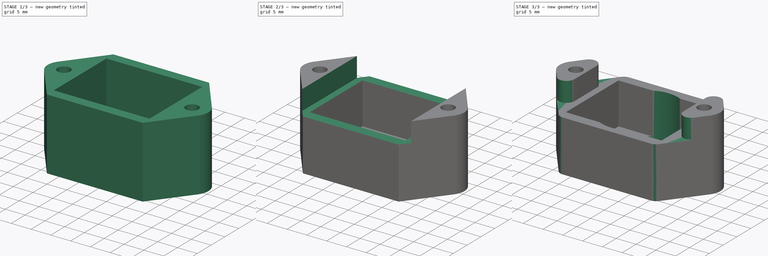
[diagram: build sequence overview — one tinted view per stage of 3, left to right]
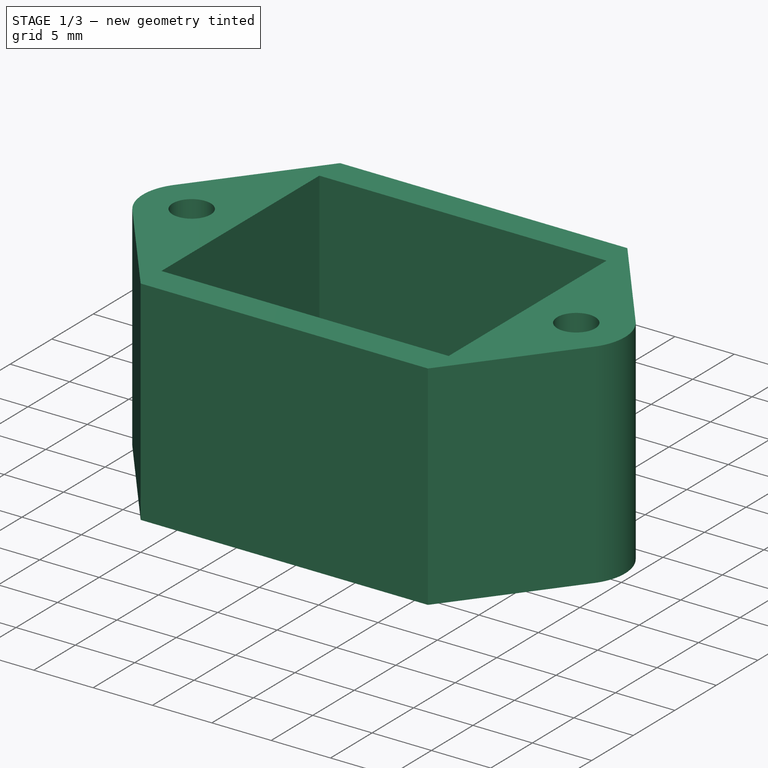
[diagram: stage 1 of 3 — iso view after this stage's code; geometry added in this stage tinted green]
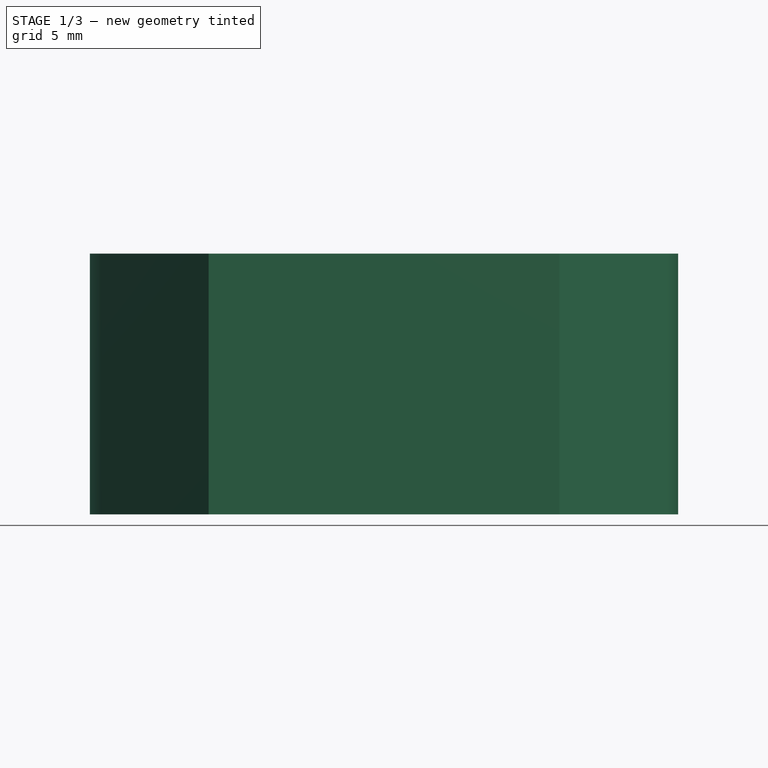
[diagram: stage 1 of 3 — front view after this stage's code; geometry added in this stage tinted green]
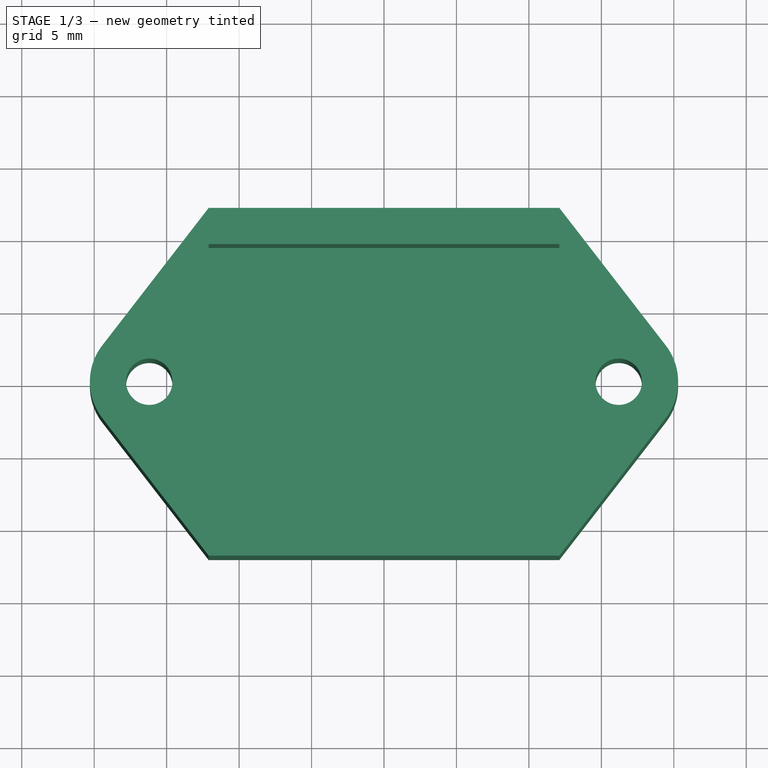
[diagram: stage 1 of 3 — top view after this stage's code; geometry added in this stage tinted green]
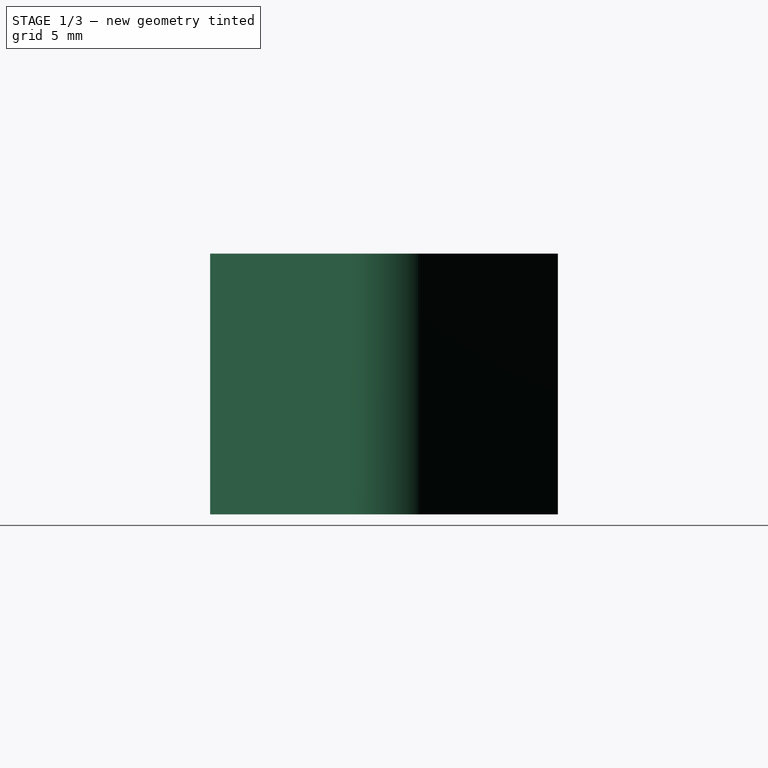
[diagram: stage 1 of 3 — right view after this stage's code; geometry added in this stage tinted green]
FCSTD DOCUMENT  (FreeCAD 0.20R29603 (Git))
Label: case-cam-shiled
License: All rights reserved
LicenseURL: http://en.wikipedia.org/wiki/All_rights_reserved
objects: Sketcher::SketchObject×4, PartDesign::Pad×2, PartDesign::Pocket×2, PartDesign::Fillet×1, PartDesign::Body×1
note: 15 computed .brp shape members not serialized (recipe doc carries the construction recipe); baked Part::Feature solids carry a one-line shape summary decoded from their .brp

FEATURE [Sketcher::SketchObject] Sketch
  FullyConstrained = true
  MapMode = 5
  Support = -> [XY_Plane]
  sketch-geometry (14):
    g0: LineSegment StartX=-12.1 StartY=12 StartZ=0 EndX=12.1 EndY=12 EndZ=0
    g1: LineSegment StartX=12.1 StartY=12 StartZ=0 EndX=12.1 EndY=-12 EndZ=0
    g2: LineSegment StartX=12.1 StartY=-12 StartZ=0 EndX=-12.1 EndY=-12 EndZ=0
    g3: LineSegment StartX=-12.1 StartY=-12 StartZ=0 EndX=-12.1 EndY=12 EndZ=0
    g4: Circle CenterX=-16.2 CenterY=0 CenterZ=0 NormalX=0 NormalY=0 NormalZ=1 AngleXU=0 Radius=4.1
    g5: Circle CenterX=16.2 CenterY=0 CenterZ=0 NormalX=0 NormalY=0 NormalZ=1 AngleXU=0 Radius=4.1
    g6: LineSegment StartX=-12.1 StartY=12 StartZ=0 EndX=-19.4428 EndY=2.5088 EndZ=0
    g7: LineSegment StartX=-12.1 StartY=-12 StartZ=0 EndX=-19.4428 EndY=-2.5088 EndZ=0
    g8: LineSegment StartX=12.1 StartY=12 StartZ=0 EndX=19.4428 EndY=2.5088 EndZ=0
    g9: LineSegment StartX=19.4428 StartY=-2.50879 StartZ=0 EndX=12.1 EndY=-12 EndZ=0
    g10: ArcOfCircle CenterX=-16.2 CenterY=0 CenterZ=0 NormalX=0 NormalY=0 NormalZ=1 AngleXU=0 Radius=4.1 StartAngle=2.48313 EndAngle=3.80006
    g11: ArcOfCircle CenterX=16.2 CenterY=0 CenterZ=0 NormalX=0 NormalY=0 NormalZ=1 AngleXU=0 Radius=4.1 StartAngle=5.62473 EndAngle=6.94165
    g12: Circle CenterX=-16.2 CenterY=0 CenterZ=0 NormalX=0 NormalY=0 NormalZ=1 AngleXU=0 Radius=1.6
    g13: Circle CenterX=16.2 CenterY=0 CenterZ=0 NormalX=0 NormalY=0 NormalZ=1 AngleXU=0 Radius=1.6
  constraints (36):
    c: Coincident(g0,g1)
    c: Coincident(g1,g2)
    c: Coincident(g2,g3)
    c: Coincident(g3,g0)
    c: Horizontal(g2)
    c: Vertical(g1)
    c: Symmetric(g2,g0,g-1)
    c: Symmetric(g0,g0,g-2)
    c: DistanceX(g0,g0) = 24.2
    c: DistanceY(g3,g3) = 24
    c: PointOnObject(g5,g-1)
    c: PointOnObject(g4,g-1)
    c: Tangent(g5,g1)
    c: Tangent(g4,g3)
    c: Equal(g5,g4)
    c: Diameter(g5) = 8.2
    c: Coincident(g9,g2)
    c: Coincident(g8,g0)
    c: Coincident(g7,g2)
    c: Coincident(g6,g0)
    c: Coincident(g10,g4)
    c: Coincident(g6,g10)
    c: Coincident(g7,g10)
    c: Equal(g10,g4)
    c: Tangent(g6,g4)
    c: Tangent(g7,g4)
    c: Coincident(g11,g5)
    c: Coincident(g11,g9)
    c: Coincident(g11,g8)
    c: Equal(g11,g5)
    c: Tangent(g8,g5)
    c: Tangent(g5,g9)
    c: Coincident(g12,g10)
    c: Coincident(g13,g11)
    c: Equal(g12,g13)
    c: Diameter(g13) = 3.2
FEATURE [PartDesign::Pad] Pad
  Direction = (0,0,1)
  Length = 2.5
  Length2 = 10
  Profile = -> Sketch
  ReferenceAxis = -> Sketch [N_Axis]
  Type = 0
FEATURE [Sketcher::SketchObject] Sketch001
  ExternalGeometry = -> [Pad]
  FullyConstrained = true
  MapMode = 5
  Placement = pos=(0,0,2.5) rot=(0,0,1;0rad)
  Support = -> [Pad]
  sketch-geometry (14):
    g0: LineSegment StartX=-12.1 StartY=12 StartZ=0 EndX=-19.4428 EndY=2.5088 EndZ=0
    g1: LineSegment StartX=12.1 StartY=12 StartZ=0 EndX=19.4428 EndY=2.5088 EndZ=0
    g2: LineSegment StartX=19.4428 StartY=-2.50879 StartZ=0 EndX=12.1 EndY=-12 EndZ=0
    g3: LineSegment StartX=12.1 StartY=-12 StartZ=0 EndX=-12.1 EndY=-12 EndZ=0
    g4: LineSegment StartX=-12.1 StartY=-12 StartZ=0 EndX=-19.4428 EndY=-2.5088 EndZ=0
    g5: LineSegment StartX=-12.1 StartY=12 StartZ=0 EndX=12.1 EndY=12 EndZ=0
    g6: ArcOfCircle CenterX=-16.2 CenterY=0 CenterZ=0 NormalX=0 NormalY=0 NormalZ=1 AngleXU=0 Radius=4.1 StartAngle=2.48313 EndAngle=3.80006
    g7: ArcOfCircle CenterX=16.2 CenterY=0 CenterZ=0 NormalX=0 NormalY=0 NormalZ=1 AngleXU=0 Radius=4.1 StartAngle=5.62473 EndAngle=6.94165
    g8: Circle CenterX=-16.2 CenterY=0 CenterZ=0 NormalX=0 NormalY=0 NormalZ=1 AngleXU=0 Radius=1.6
    g9: Circle CenterX=16.2 CenterY=0 CenterZ=0 NormalX=0 NormalY=0 NormalZ=1 AngleXU=0 Radius=1.6
    g10: LineSegment StartX=-12.1 StartY=9.5 StartZ=0 EndX=12.1 EndY=9.5 EndZ=0
    g11: LineSegment StartX=12.1 StartY=9.5 StartZ=0 EndX=12.1 EndY=-9.5 EndZ=0
    g12: LineSegment StartX=12.1 StartY=-9.5 StartZ=0 EndX=-12.1 EndY=-9.5 EndZ=0
    g13: LineSegment StartX=-12.1 StartY=-9.5 StartZ=0 EndX=-12.1 EndY=9.5 EndZ=0
  constraints (33):
    c: Coincident(g-5,g0)
    c: Coincident(g0,g-6)
    c: Coincident(g1,g-4)
    c: Coincident(g1,g-10)
    c: Coincident(g5,g0)
    c: Coincident(g5,g1)
    c: Coincident(g4,g-7)
    c: Coincident(g4,g-8)
    c: Coincident(g3,g4)
    c: Coincident(g3,g-9)
    c: Coincident(g2,g3)
    c: Coincident(g2,g-10)
    c: Coincident(g6,g-6)
    c: Coincident(g7,g-10)
    c: Coincident(g7,g1)
    c: Vertical(g7,g2)
    c: Coincident(g6,g0)
    c: Vertical(g6,g4)
    c: Coincident(g8,g6)
    c: Coincident(g9,g7)
    c: Equal(g9,g-12)
    c: Equal(g8,g-11)
    c: Coincident(g10,g11)
    c: Coincident(g11,g12)
    c: Coincident(g12,g13)
    c: Coincident(g13,g10)
    c: Horizontal(g10)
    c: Horizontal(g12)
    c: Vertical(g11)
    c: Vertical(g10,g1)
    c: Vertical(g12,g3)
    c: Symmetric(g10,g12,g-1)
    c: DistanceY(g10,g0) = 2.5
FEATURE [PartDesign::Pad] Pad001
  BaseFeature = -> Pad
  Direction = (0,0,1)
  Length = 15.5
  Length2 = 10
  Profile = -> Sketch001
  ReferenceAxis = -> Sketch001 [N_Axis]
  Type = 0
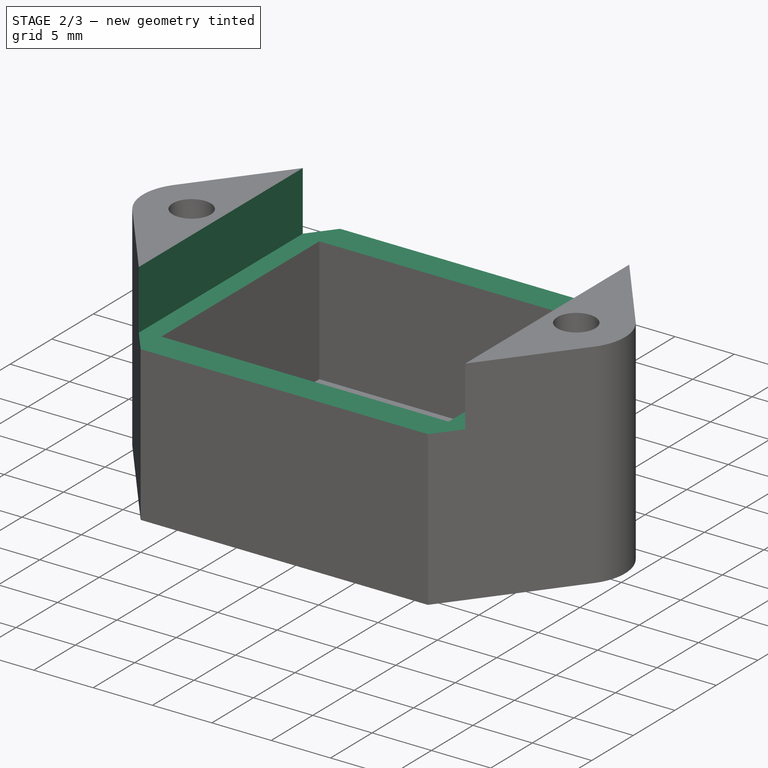
[diagram: stage 2 of 3 — iso view after this stage's code; geometry added in this stage tinted green]
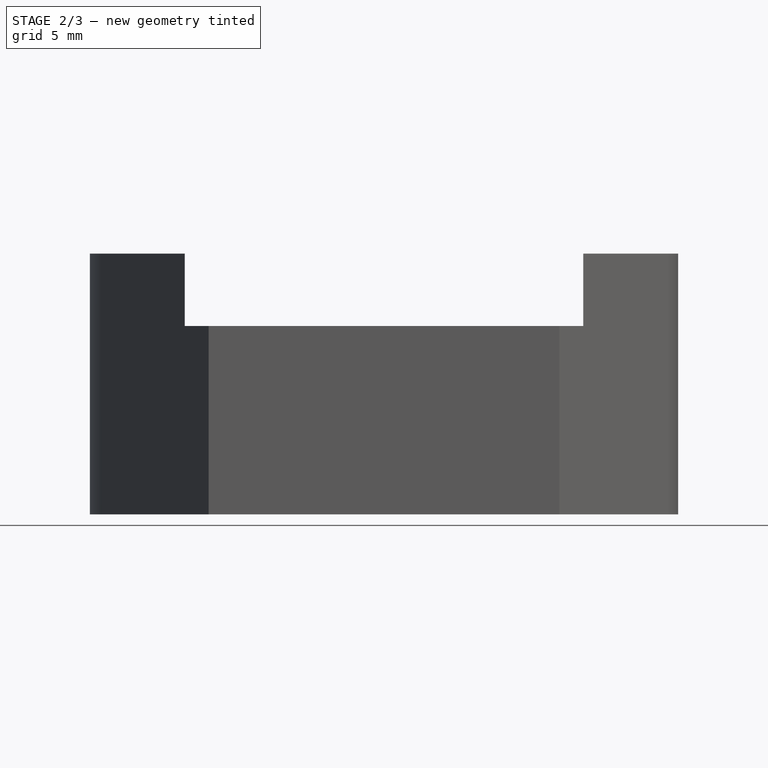
[diagram: stage 2 of 3 — front view after this stage's code; geometry added in this stage tinted green]
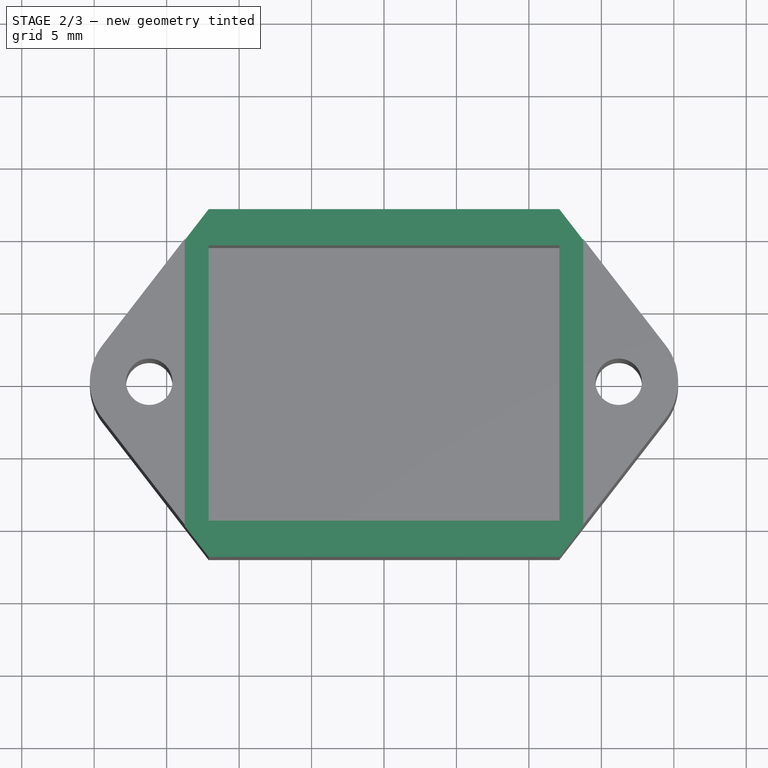
[diagram: stage 2 of 3 — top view after this stage's code; geometry added in this stage tinted green]
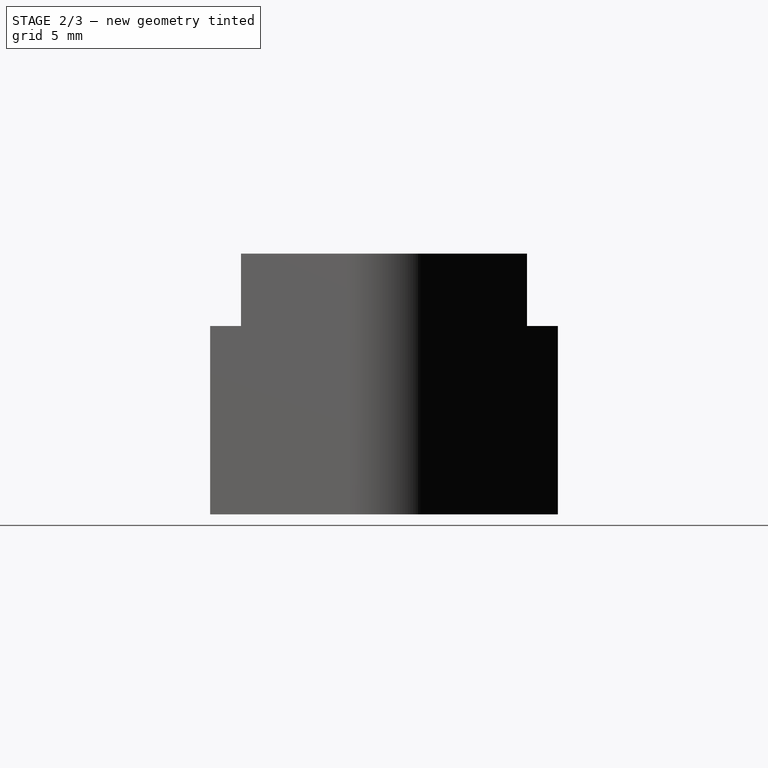
[diagram: stage 2 of 3 — right view after this stage's code; geometry added in this stage tinted green]
FEATURE [Sketcher::SketchObject] Sketch002
  ExternalGeometry = -> [Pad001]
  FullyConstrained = true
  MapMode = 5
  Placement = pos=(0,0,18) rot=(0,0,1;0rad)
  Support = -> [Pad001]
  sketch-geometry (4):
    g0: LineSegment StartX=-13.75 StartY=12.5 StartZ=0 EndX=13.75 EndY=12.5 EndZ=0
    g1: LineSegment StartX=13.75 StartY=12.5 StartZ=0 EndX=13.75 EndY=-12.5 EndZ=0
    g2: LineSegment StartX=13.75 StartY=-12.5 StartZ=0 EndX=-13.75 EndY=-12.5 EndZ=0
    g3: LineSegment StartX=-13.75 StartY=-12.5 StartZ=0 EndX=-13.75 EndY=12.5 EndZ=0
  constraints (10):
    c: Coincident(g0,g1)
    c: Coincident(g1,g2)
    c: Coincident(g2,g3)
    c: Coincident(g3,g0)
    c: Horizontal(g2)
    c: Vertical(g1)
    c: Symmetric(g0,g2,g-1)
    c: Symmetric(g0,g0,g-2)
    c: DistanceX(g0,g0) = 27.5
    c: DistanceY(g1,g1) = 25
FEATURE [PartDesign::Pocket] Pocket
  BaseFeature = -> Pad001
  Direction = (0,0,-1)
  Length = 5
  Length2 = 5
  Profile = -> Sketch002
  ReferenceAxis = -> Sketch002 [N_Axis]
  Type = 0
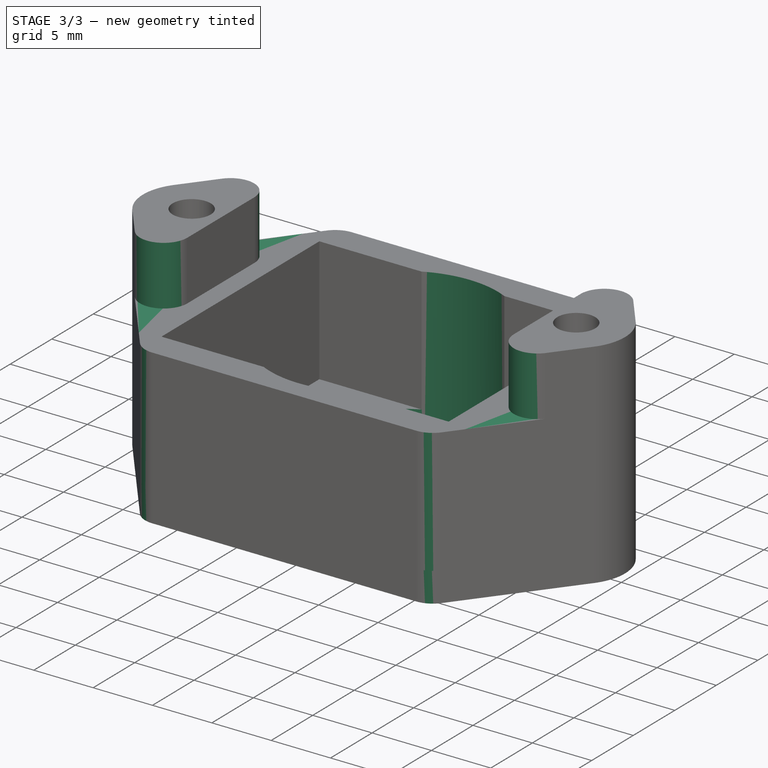
[diagram: stage 3 of 3 — iso view after this stage's code; geometry added in this stage tinted green]
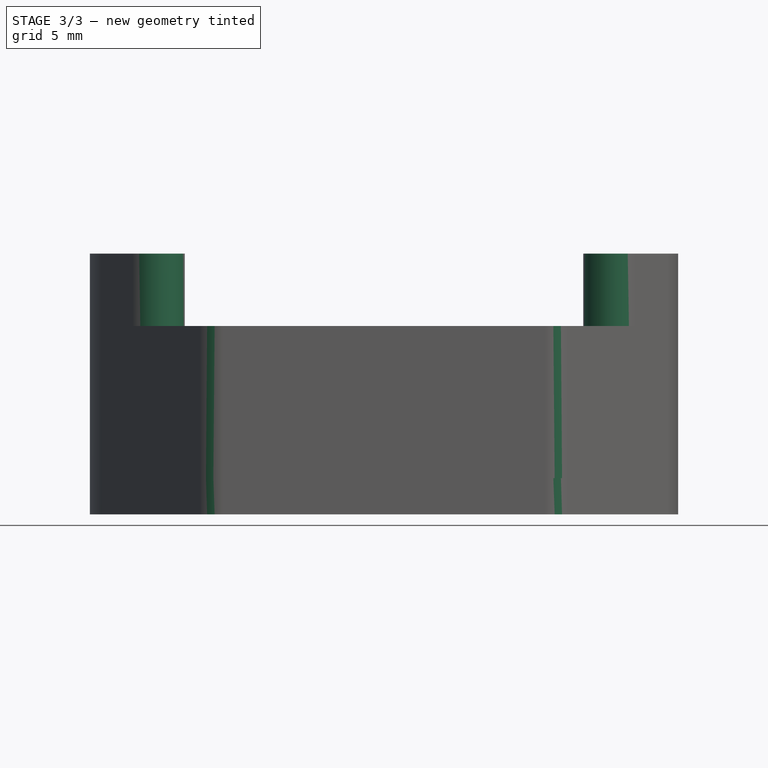
[diagram: stage 3 of 3 — front view after this stage's code; geometry added in this stage tinted green]
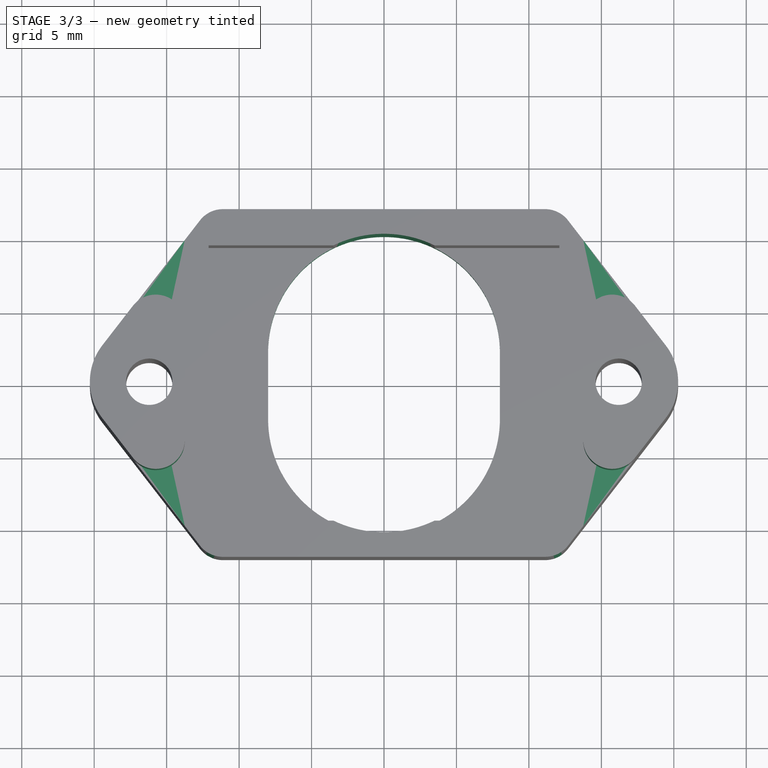
[diagram: stage 3 of 3 — top view after this stage's code; geometry added in this stage tinted green]
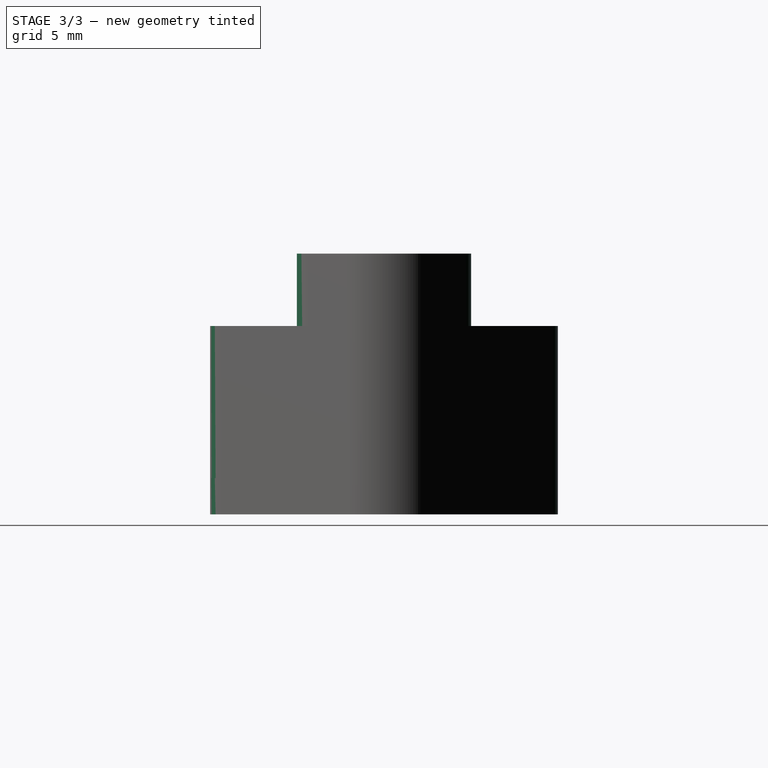
[diagram: stage 3 of 3 — right view after this stage's code; geometry added in this stage tinted green]
FEATURE [Sketcher::SketchObject] Sketch003
  ExternalGeometry = -> [Pocket]
  FullyConstrained = true
  MapMode = 5
  Placement = pos=(0,0,0) rot=(1,0,0;3.14159rad)
  Support = -> [Pocket]
  sketch-geometry (7):
    g0: ArcOfCircle CenterX=0 CenterY=2.3 CenterZ=0 NormalX=0 NormalY=0 NormalZ=1 AngleXU=0 Radius=8 StartAngle=0 EndAngle=3.14159
    g1: ArcOfCircle CenterX=0 CenterY=-2.3 CenterZ=0 NormalX=0 NormalY=0 NormalZ=1 AngleXU=0 Radius=8 StartAngle=3.14159 EndAngle=6.28319
    g2: LineSegment StartX=-8 StartY=2.3 StartZ=0 EndX=-8 EndY=-2.3 EndZ=0
    g3: LineSegment StartX=8 StartY=-2.3 StartZ=0 EndX=8 EndY=2.3 EndZ=0
    g4: LineSegment StartX=0 StartY=2.3 StartZ=0 EndX=0 EndY=-2.3 EndZ=0
    g5: GeomPoint X=0 Y=10.3 Z=0
    g6: GeomPoint X=0 Y=12 Z=0
  constraints (15):
    c: Tangent(g0,g2) = -1.5708
    c: Tangent(g2,g1) = -1.5708
    c: Tangent(g1,g3) = -1.5708
    c: Tangent(g3,g0) = -1.5708
    c: Equal(g0,g1)
    c: PointOnObject(g0,g-2)
    c: Coincident(g4,g0)
    c: Coincident(g4,g1)
    c: Symmetric(g1,g0,g-1)
    c: Diameter(g0) = 16
    c: PointOnObject(g6,g-3)
    c: PointOnObject(g6,g-2)
    c: PointOnObject(g5,g0)
    c: PointOnObject(g5,g-2)
    c: DistanceY(g5,g6) = 1.7
FEATURE [PartDesign::Pocket] Pocket001
  BaseFeature = -> Pocket
  Direction = (0,0,1)
  Length = 5
  Length2 = 5
  Profile = -> Sketch003
  ReferenceAxis = -> Sketch003 [N_Axis]
  Type = 1
FEATURE [PartDesign::Fillet] Fillet
  Base = -> Pocket001 [Edge26,Edge29,Edge82,Edge79,Edge64,Edge83,Edge78,Edge24]
  BaseFeature = -> Pocket001
  Radius = 2
  SupportTransform = false
  UseAllEdges = false
FEATURE [PartDesign::Body] Body
  Group = -> [Sketch,Pad,Sketch001,Pad001,Sketch002,Pocket,Sketch003,Pocket001,Fillet]
  Origin = -> Origin
  Tip = -> Fillet
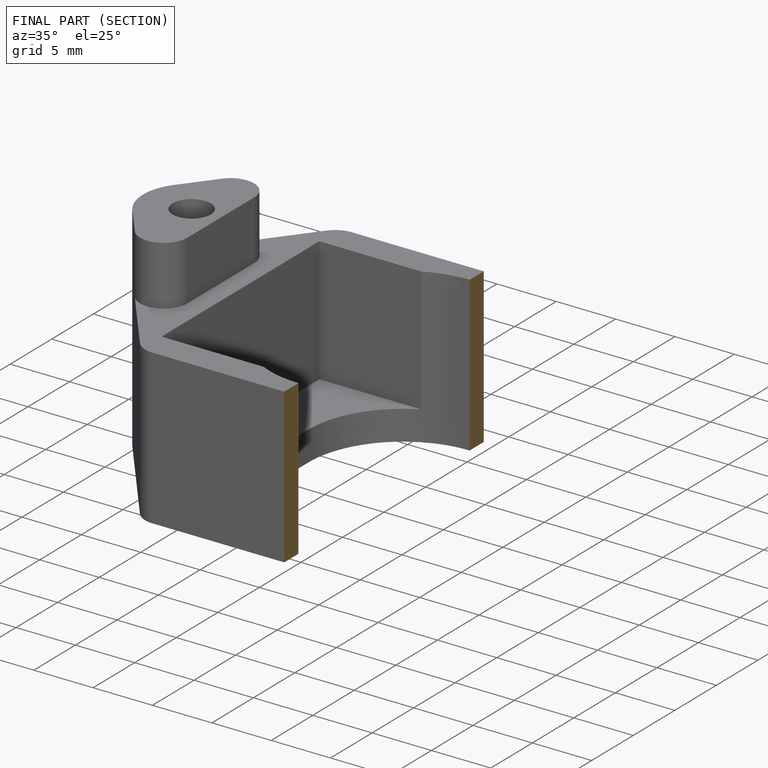
[diagram: finished part — half-section view (interior)]
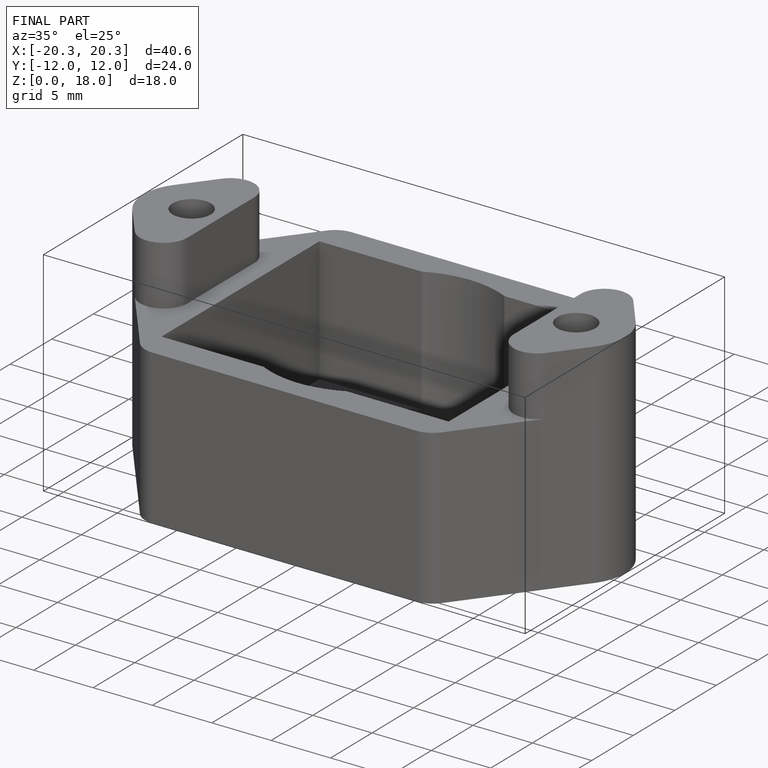
[diagram: finished part — iso view with bounding-box wireframe]
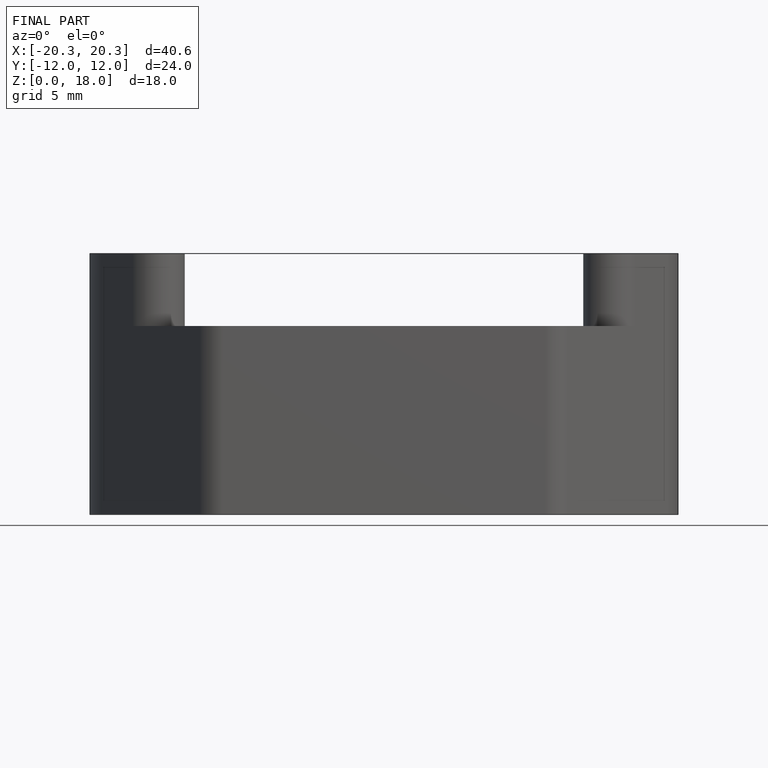
[diagram: finished part — front view with bounding-box wireframe]
